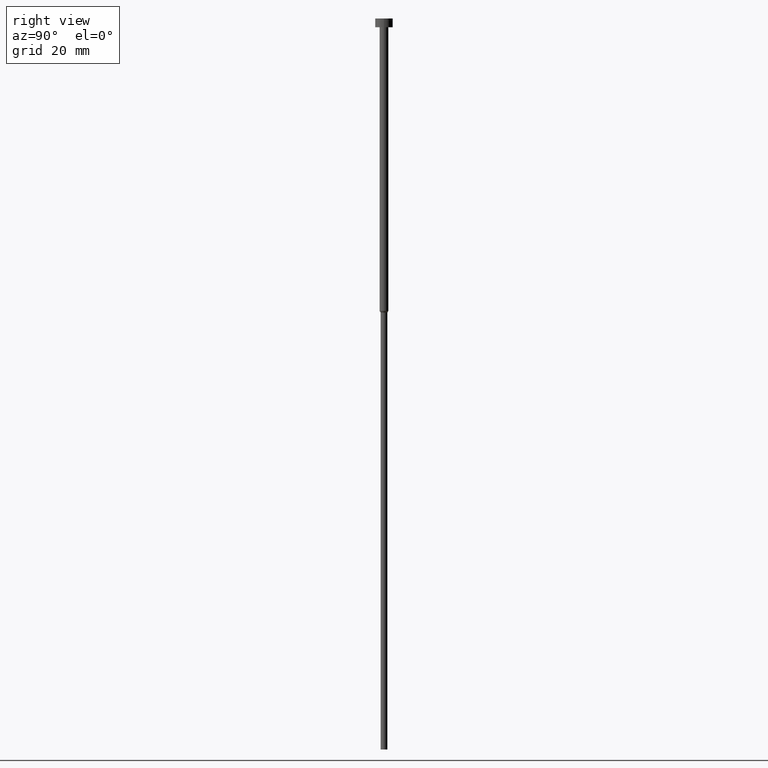
[diagram: clean part render]
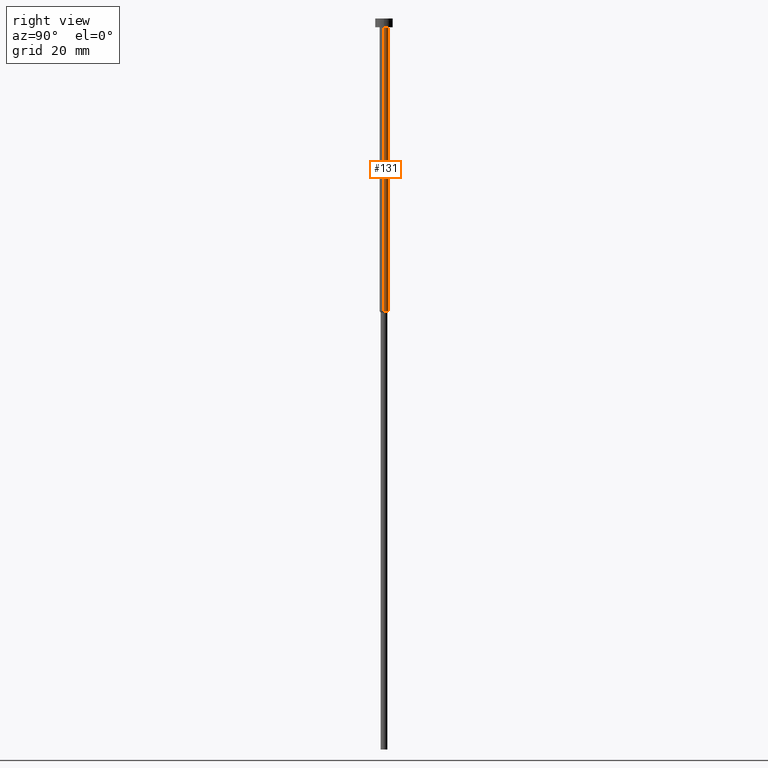
[diagram: same view with one face highlighted and labeled with its STEP entity id]
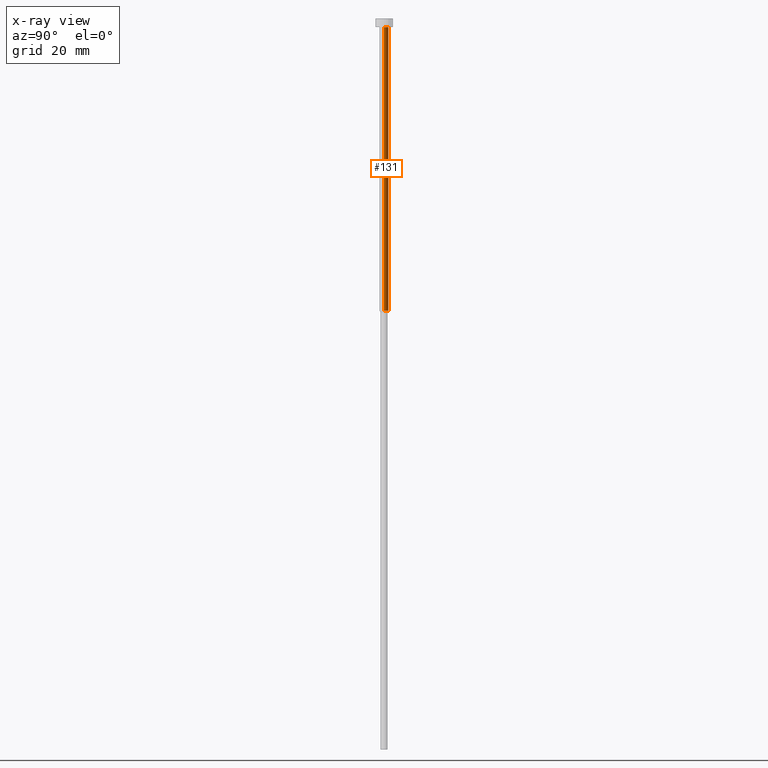
[diagram: x-ray of the same camera — body ghosted, the highlighted face saturated]
A machine part, right view. The second image highlights one B-rep face of the part: STEP entity #131.
The next image is the same camera in x-ray: the body ghosted, the highlighted face saturated — about 0% of this face is hidden behind the body in this view.
In plain terms, the highlighted cylindrical surface (edge-blend (fillet) strip) has radius 1.5 mm, axis along (-0, -0, 1).
Its self-contained STEP definition (entity closure, byte-faithful):
#2 = LINE ( 'NONE', #136, #347 ) ;
#28 = AXIS2_PLACEMENT_3D ( 'NONE', #307, #143, #90 ) ;
#34 = EDGE_CURVE ( 'NONE', #46, #335, #2, .T. ) ;
#41 = EDGE_CURVE ( 'NONE', #46, #44, #98, .T. ) ;
#44 = VERTEX_POINT ( 'NONE', #351 ) ;
#46 = VERTEX_POINT ( 'NONE', #246 ) ;
#52 = DIRECTION ( 'NONE',  ( 1.000000000000000000, 0.000000000000000000, 0.000000000000000000 ) ) ;
#53 = CARTESIAN_POINT ( 'NONE',  ( 0.000000000000000000, 0.000000000000000000, -100.0000000000000000 ) ) ;
#90 = DIRECTION ( 'NONE',  ( 1.000000000000000000, 0.000000000000000000, 0.000000000000000000 ) ) ;
#98 = CIRCLE ( 'NONE', #315, 1.500000000000000000 ) ;
#102 = VERTEX_POINT ( 'NONE', #157 ) ;
#110 = FACE_OUTER_BOUND ( 'NONE', #261, .T. ) ;
#120 = CARTESIAN_POINT ( 'NONE',  ( 1.500000000000000000, 0.000000000000000000, -3.000000000000000888 ) ) ;
#129 = ORIENTED_EDGE ( 'NONE', *, *, #332, .F. ) ;
#131 = ADVANCED_FACE ( 'NONE', ( #110 ), #216, .T. ) ;
#136 = CARTESIAN_POINT ( 'NONE',  ( 1.500000000000000000, 0.000000000000000000, 0.000000000000000000 ) ) ;
#139 = ORIENTED_EDGE ( 'NONE', *, *, #41, .T. ) ;
#143 = DIRECTION ( 'NONE',  ( -0.000000000000000000, -0.000000000000000000, 1.000000000000000000 ) ) ;
#151 = ORIENTED_EDGE ( 'NONE', *, *, #325, .T. ) ;
#157 = CARTESIAN_POINT ( 'NONE',  ( -1.500000000000000000, 1.836970198721029934E-16, -3.000000000000000888 ) ) ;
#162 = DIRECTION ( 'NONE',  ( 1.000000000000000000, 0.000000000000000000, 0.000000000000000000 ) ) ;
#184 = VECTOR ( 'NONE', #228, 1000.000000000000000 ) ;
#216 = CYLINDRICAL_SURFACE ( 'NONE', #221, 1.500000000000000000 ) ;
#218 = CARTESIAN_POINT ( 'NONE',  ( 0.000000000000000000, 0.000000000000000000, 0.000000000000000000 ) ) ;
#221 = AXIS2_PLACEMENT_3D ( 'NONE', #218, #271, #52 ) ;
#225 = LINE ( 'NONE', #231, #184 ) ;
#228 = DIRECTION ( 'NONE',  ( -0.000000000000000000, -0.000000000000000000, 1.000000000000000000 ) ) ;
#231 = CARTESIAN_POINT ( 'NONE',  ( -1.500000000000000000, 1.836970198721029934E-16, 0.000000000000000000 ) ) ;
#245 = DIRECTION ( 'NONE',  ( -0.000000000000000000, -0.000000000000000000, 1.000000000000000000 ) ) ;
#246 = CARTESIAN_POINT ( 'NONE',  ( 1.500000000000000000, 0.000000000000000000, -100.0000000000000000 ) ) ;
#259 = ORIENTED_EDGE ( 'NONE', *, *, #34, .F. ) ;
#261 = EDGE_LOOP ( 'NONE', ( #139, #151, #129, #259 ) ) ;
#271 = DIRECTION ( 'NONE',  ( -0.000000000000000000, -0.000000000000000000, 1.000000000000000000 ) ) ;
#299 = DIRECTION ( 'NONE',  ( -0.000000000000000000, -0.000000000000000000, 1.000000000000000000 ) ) ;
#307 = CARTESIAN_POINT ( 'NONE',  ( 0.000000000000000000, 0.000000000000000000, -3.000000000000000888 ) ) ;
#308 = CIRCLE ( 'NONE', #28, 1.500000000000000000 ) ;
#315 = AXIS2_PLACEMENT_3D ( 'NONE', #53, #245, #162 ) ;
#325 = EDGE_CURVE ( 'NONE', #44, #102, #225, .T. ) ;
#332 = EDGE_CURVE ( 'NONE', #335, #102, #308, .T. ) ;
#335 = VERTEX_POINT ( 'NONE', #120 ) ;
#347 = VECTOR ( 'NONE', #299, 1000.000000000000000 ) ;
#351 = CARTESIAN_POINT ( 'NONE',  ( -1.500000000000000000, 1.836970198721029934E-16, -100.0000000000000000 ) ) ;